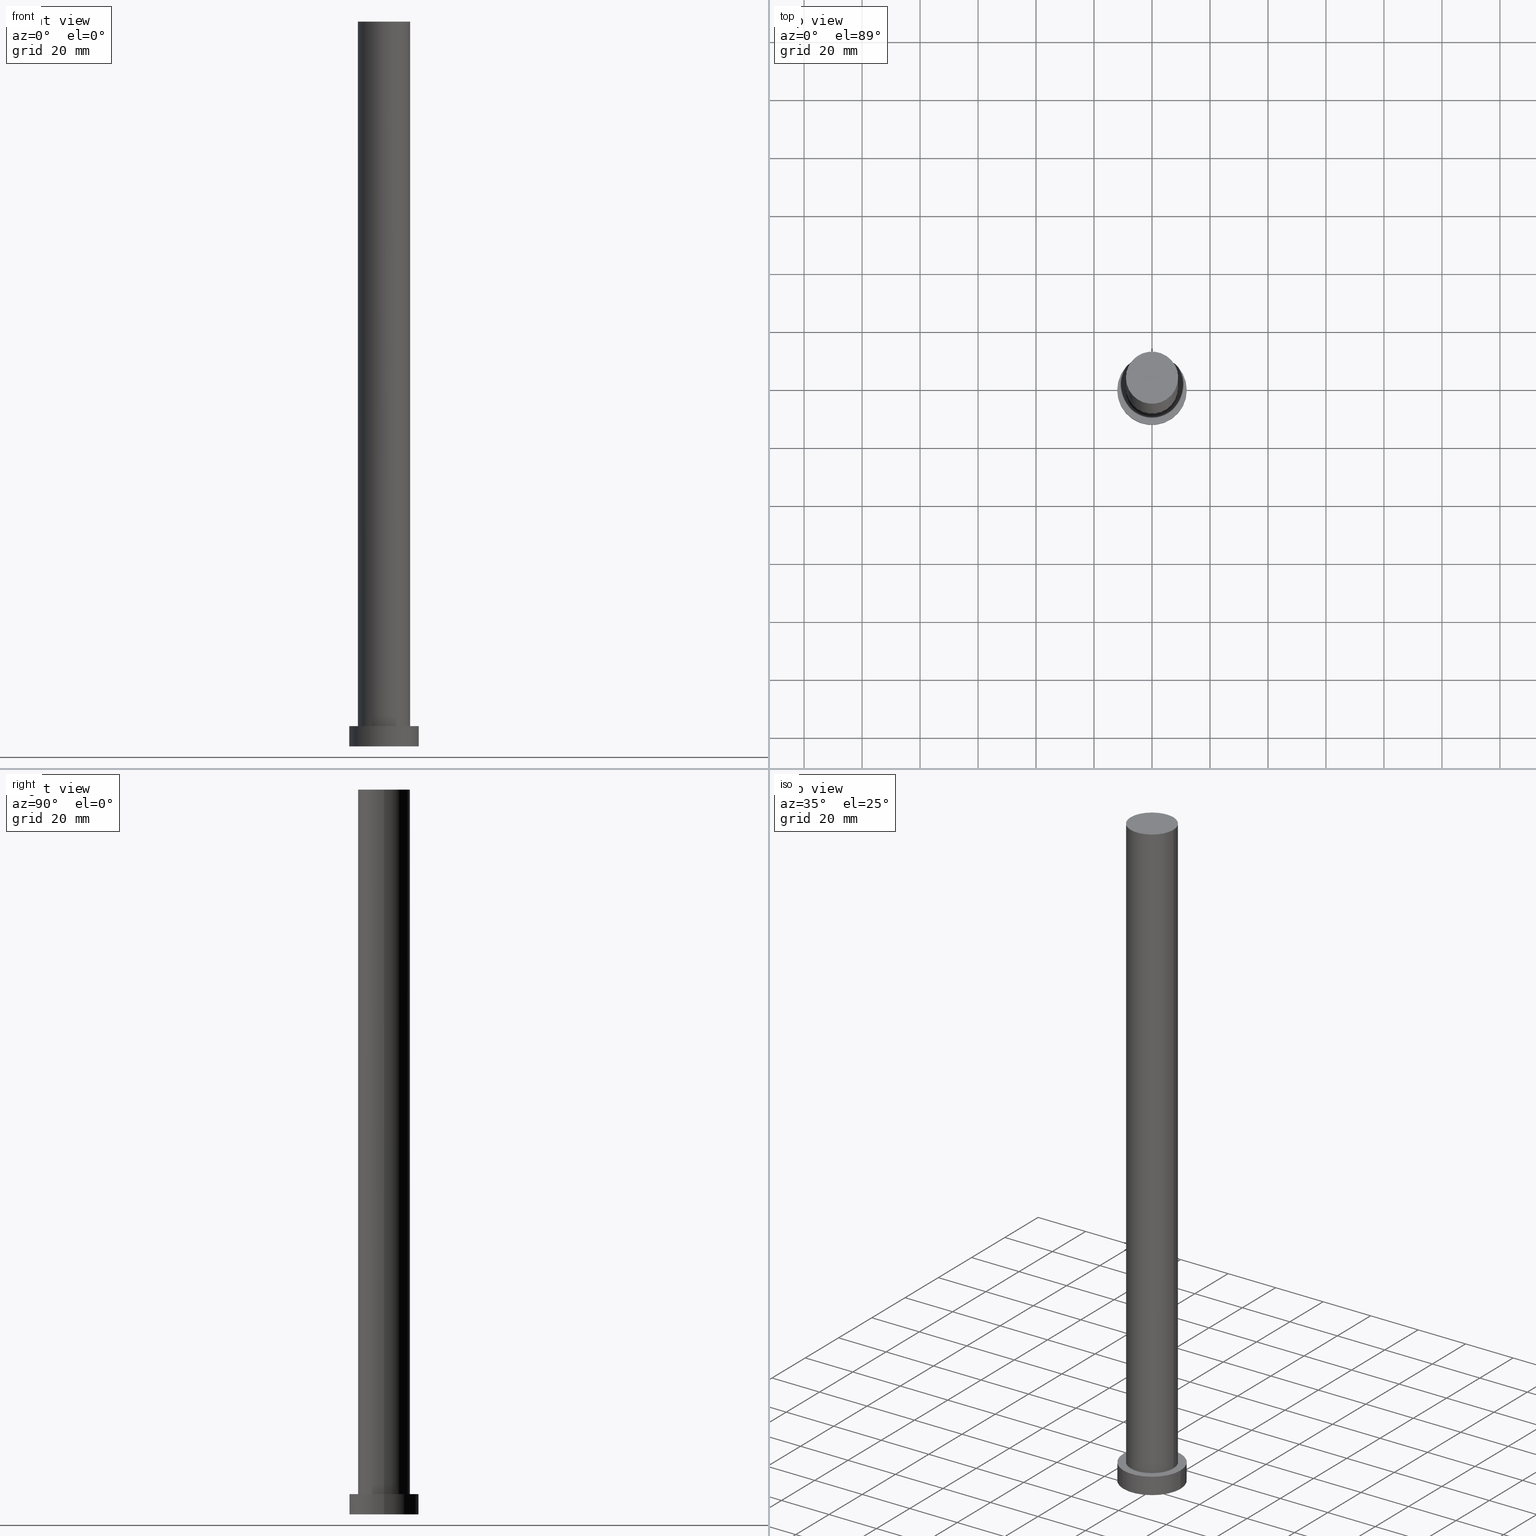
[diagram: canonical four-view strip — front | top / right | iso, engineering-drawing reading convention]
A machine part, canonical four-view strip (front | top / right | iso — engineering-drawing reading convention). The complete STEP part file that produces these views, byte-faithful:
ISO-10303-21;
HEADER;
FILE_DESCRIPTION (( 'STEP AP203' ),
    '1' );
FILE_NAME ('9f86.STEP',
    '2023-02-13T09:18:58',
    ( '' ),
    ( '' ),
    'SwSTEP 2.0',
    'SolidWorks 2019',
    '' );
FILE_SCHEMA (( 'CONFIG_CONTROL_DESIGN' ));
ENDSEC;

DATA;
#1 = DATE_TIME_ROLE ( 'classification_date' ) ;
#2 = CC_DESIGN_PERSON_AND_ORGANIZATION_ASSIGNMENT ( #217, #17, ( #121 ) ) ;
#3 = ORIENTED_EDGE ( 'NONE', *, *, #171, .T. ) ;
#4 = ORIENTED_EDGE ( 'NONE', *, *, #71, .T. ) ;
#5 = DIRECTION ( 'NONE',  ( 0.000000000000000000, 0.000000000000000000, 1.000000000000000000 ) ) ;
#6 = VERTEX_POINT ( 'NONE', #80 ) ;
#7 = CYLINDRICAL_SURFACE ( 'NONE', #140, 9.000000000000000000 ) ;
#8 = DIRECTION ( 'NONE',  ( 0.000000000000000000, 0.000000000000000000, 1.000000000000000000 ) ) ;
#9 = DIRECTION ( 'NONE',  ( -1.000000000000000000, 0.000000000000000000, 0.000000000000000000 ) ) ;
#10 = CARTESIAN_POINT ( 'NONE',  ( 0.000000000000000000, 0.000000000000000000, 250.0000000000000000 ) ) ;
#11 = PRODUCT_RELATED_PRODUCT_CATEGORY ( 'detail', '', ( #75 ) ) ;
#12 = DIRECTION ( 'NONE',  ( 1.000000000000000000, 0.000000000000000000, 0.000000000000000000 ) ) ;
#13 = APPROVAL_DATE_TIME ( #92, #199 ) ;
#14 = PERSON_AND_ORGANIZATION ( #195, #54 ) ;
#15 = ADVANCED_FACE ( 'NONE', ( #186 ), #79, .F. ) ;
#16 = APPROVAL_ROLE ( '' ) ;
#17 = PERSON_AND_ORGANIZATION_ROLE ( 'creator' ) ;
#18 = VERTEX_POINT ( 'NONE', #203 ) ;
#19 = EDGE_CURVE ( 'NONE', #191, #167, #163, .T. ) ;
#20 = ORIENTED_EDGE ( 'NONE', *, *, #134, .F. ) ;
#21 = ORIENTED_EDGE ( 'NONE', *, *, #117, .F. ) ;
#22 = FACE_OUTER_BOUND ( 'NONE', #123, .T. ) ;
#23 = DIRECTION ( 'NONE',  ( 0.000000000000000000, 0.000000000000000000, 1.000000000000000000 ) ) ;
#24 = CC_DESIGN_PERSON_AND_ORGANIZATION_ASSIGNMENT ( #137, #252, ( #193 ) ) ;
#25 = DIRECTION ( 'NONE',  ( -0.000000000000000000, -0.000000000000000000, -1.000000000000000000 ) ) ;
#26 = LINE ( 'NONE', #66, #239 ) ;
#27 = CARTESIAN_POINT ( 'NONE',  ( 0.000000000000000000, 0.000000000000000000, 250.0000000000000000 ) ) ;
#28 = CIRCLE ( 'NONE', #91, 12.00000000000000178 ) ;
#29 = DIRECTION ( 'NONE',  ( -0.000000000000000000, -0.000000000000000000, -1.000000000000000000 ) ) ;
#30 = AXIS2_PLACEMENT_3D ( 'NONE', #58, #23, #122 ) ;
#31 = CARTESIAN_POINT ( 'NONE',  ( 0.000000000000000000, 0.000000000000000000, 7.000000000000000000 ) ) ;
#32 = AXIS2_PLACEMENT_3D ( 'NONE', #197, #226, #212 ) ;
#33 = CALENDAR_DATE ( 2023, 13, 2 ) ;
#34 = COORDINATED_UNIVERSAL_TIME_OFFSET ( 1, 0, .AHEAD. ) ;
#35 = DIRECTION ( 'NONE',  ( 1.000000000000000000, 0.000000000000000000, 0.000000000000000000 ) ) ;
#36 = AXIS2_PLACEMENT_3D ( 'NONE', #50, #25, #207 ) ;
#37 = APPROVAL_PERSON_ORGANIZATION ( #165, #199, #111 ) ;
#38 = APPROVAL_STATUS ( 'not_yet_approved' ) ;
#39 = CARTESIAN_POINT ( 'NONE',  ( 0.000000000000000000, 0.000000000000000000, 7.000000000000000000 ) ) ;
#40 = EDGE_LOOP ( 'NONE', ( #146, #220 ) ) ;
#41 = ORIENTED_EDGE ( 'NONE', *, *, #225, .T. ) ;
#42 = CARTESIAN_POINT ( 'NONE',  ( 0.000000000000000000, 0.000000000000000000, 7.000000000000000000 ) ) ;
#43 = EDGE_CURVE ( 'NONE', #59, #18, #149, .T. ) ;
#44 = DIRECTION ( 'NONE',  ( 0.000000000000000000, 0.000000000000000000, 1.000000000000000000 ) ) ;
#45 = FACE_OUTER_BOUND ( 'NONE', #82, .T. ) ;
#46 = AXIS2_PLACEMENT_3D ( 'NONE', #246, #47, #126 ) ;
#47 = DIRECTION ( 'NONE',  ( 0.000000000000000000, 0.000000000000000000, 1.000000000000000000 ) ) ;
#48 = CC_DESIGN_DATE_AND_TIME_ASSIGNMENT ( #69, #158, ( #193 ) ) ;
#49 = CYLINDRICAL_SURFACE ( 'NONE', #36, 12.00000000000000178 ) ;
#50 = CARTESIAN_POINT ( 'NONE',  ( 0.000000000000000000, 0.000000000000000000, 7.000000000000000000 ) ) ;
#51 = MECHANICAL_CONTEXT ( 'NONE', #67, 'mechanical' ) ;
#52 = AXIS2_PLACEMENT_3D ( 'NONE', #39, #104, #89 ) ;
#53 = DATE_AND_TIME ( #213, #157 ) ;
#54 = ORGANIZATION ( 'NEUR�EN�', 'NEUR�EN�', '' ) ;
#55 = VERTEX_POINT ( 'NONE', #204 ) ;
#56 = DESIGN_CONTEXT ( 'detailed design', #243, 'design' ) ;
#57 = ORIENTED_EDGE ( 'NONE', *, *, #160, .T. ) ;
#58 = CARTESIAN_POINT ( 'NONE',  ( 0.000000000000000000, 0.000000000000000000, 250.0000000000000000 ) ) ;
#59 = VERTEX_POINT ( 'NONE', #219 ) ;
#60 = LOCAL_TIME ( 10, 18, 58.00000000000000000, #159 ) ;
#61 = AXIS2_PLACEMENT_3D ( 'NONE', #42, #5, #187 ) ;
#62 = ORIENTED_EDGE ( 'NONE', *, *, #43, .F. ) ;
#63 =( NAMED_UNIT ( * ) PLANE_ANGLE_UNIT ( ) SI_UNIT ( $, .RADIAN. ) );
#64 = DIRECTION ( 'NONE',  ( 1.000000000000000000, 0.000000000000000000, 0.000000000000000000 ) ) ;
#65 = CARTESIAN_POINT ( 'NONE',  ( -12.00000000000000178, 0.000000000000000000, 0.000000000000000000 ) ) ;
#66 = CARTESIAN_POINT ( 'NONE',  ( 12.00000000000000178, 1.469576158976824144E-15, 7.000000000000000000 ) ) ;
#67 = APPLICATION_CONTEXT ( 'configuration controlled 3d designs of mechanical parts and assemblies' ) ;
#68 = CC_DESIGN_APPROVAL ( #182, ( #183 ) ) ;
#69 = DATE_AND_TIME ( #33, #141 ) ;
#70 = PERSON_AND_ORGANIZATION ( #195, #54 ) ;
#71 = EDGE_CURVE ( 'NONE', #55, #233, #185, .T. ) ;
#72 = PERSON_AND_ORGANIZATION_ROLE ( 'design_owner' ) ;
#73 = AXIS2_PLACEMENT_3D ( 'NONE', #102, #44, #206 ) ;
#74 = DATE_AND_TIME ( #216, #60 ) ;
#75 = PRODUCT ( '9f86', '9f86', '', ( #51 ) ) ;
#76 = CIRCLE ( 'NONE', #138, 9.000000000000000000 ) ;
#77 = EDGE_LOOP ( 'NONE', ( #168, #99, #118, #4 ) ) ;
#78 = VERTEX_POINT ( 'NONE', #205 ) ;
#79 = PLANE ( 'NONE',  #136 ) ;
#80 = CARTESIAN_POINT ( 'NONE',  ( -12.00000000000000178, 0.000000000000000000, 7.000000000000000000 ) ) ;
#81 = CC_DESIGN_SECURITY_CLASSIFICATION ( #183, ( #121 ) ) ;
#82 = EDGE_LOOP ( 'NONE', ( #62, #57, #241, #21 ) ) ;
#83 = DIRECTION ( 'NONE',  ( -0.000000000000000000, -0.000000000000000000, -1.000000000000000000 ) ) ;
#84 = DIRECTION ( 'NONE',  ( -0.000000000000000000, -0.000000000000000000, -1.000000000000000000 ) ) ;
#85 = VECTOR ( 'NONE', #84, 1000.000000000000000 ) ;
#86 = ADVANCED_FACE ( 'NONE', ( #22 ), #188, .T. ) ;
#87 = DIRECTION ( 'NONE',  ( 1.000000000000000000, 0.000000000000000000, 0.000000000000000000 ) ) ;
#88 = DIRECTION ( 'NONE',  ( 1.000000000000000000, 0.000000000000000000, -0.000000000000000000 ) ) ;
#89 = DIRECTION ( 'NONE',  ( -1.000000000000000000, 0.000000000000000000, 0.000000000000000000 ) ) ;
#90 = PERSON_AND_ORGANIZATION_ROLE ( 'design_supplier' ) ;
#91 = AXIS2_PLACEMENT_3D ( 'NONE', #155, #176, #87 ) ;
#92 = DATE_AND_TIME ( #201, #147 ) ;
#93 = ADVANCED_BREP_SHAPE_REPRESENTATION ( '9f86', ( #245, #116 ), #97 ) ;
#94 = ADVANCED_FACE ( 'NONE', ( #109, #132 ), #174, .T. ) ;
#95 = APPLICATION_PROTOCOL_DEFINITION ( 'international standard', 'config_control_design', 1994, #243 ) ;
#96 = PERSON_AND_ORGANIZATION ( #195, #54 ) ;
#97 =( GEOMETRIC_REPRESENTATION_CONTEXT ( 3 ) GLOBAL_UNCERTAINTY_ASSIGNED_CONTEXT ( ( #232 ) ) GLOBAL_UNIT_ASSIGNED_CONTEXT ( ( #156, #63, #218 ) ) REPRESENTATION_CONTEXT ( 'NONE', 'WORKASPACE' ) );
#98 = PERSON_AND_ORGANIZATION_ROLE ( 'classification_officer' ) ;
#99 = ORIENTED_EDGE ( 'NONE', *, *, #120, .F. ) ;
#100 = ORIENTED_EDGE ( 'NONE', *, *, #171, .F. ) ;
#101 = DIRECTION ( 'NONE',  ( 0.000000000000000000, 0.000000000000000000, 1.000000000000000000 ) ) ;
#102 = CARTESIAN_POINT ( 'NONE',  ( 0.000000000000000000, 0.000000000000000000, 0.000000000000000000 ) ) ;
#103 = CIRCLE ( 'NONE', #46, 12.00000000000000178 ) ;
#104 = DIRECTION ( 'NONE',  ( -0.000000000000000000, -0.000000000000000000, -1.000000000000000000 ) ) ;
#105 = LINE ( 'NONE', #128, #85 ) ;
#106 = CC_DESIGN_PERSON_AND_ORGANIZATION_ASSIGNMENT ( #70, #98, ( #183 ) ) ;
#107 = DIRECTION ( 'NONE',  ( -0.000000000000000000, -0.000000000000000000, -1.000000000000000000 ) ) ;
#108 = DIRECTION ( 'NONE',  ( 0.000000000000000000, 0.000000000000000000, 1.000000000000000000 ) ) ;
#109 = FACE_BOUND ( 'NONE', #148, .T. ) ;
#110 = PLANE ( 'NONE',  #200 ) ;
#111 = APPROVAL_ROLE ( '' ) ;
#112 = AXIS2_PLACEMENT_3D ( 'NONE', #250, #8, #12 ) ;
#113 = SECURITY_CLASSIFICATION_LEVEL ( 'unclassified' ) ;
#114 = COORDINATED_UNIVERSAL_TIME_OFFSET ( 1, 0, .AHEAD. ) ;
#115 = DIRECTION ( 'NONE',  ( 0.000000000000000000, 0.000000000000000000, 1.000000000000000000 ) ) ;
#116 = AXIS2_PLACEMENT_3D ( 'NONE', #139, #115, #35 ) ;
#117 = EDGE_CURVE ( 'NONE', #18, #55, #105, .T. ) ;
#118 = ORIENTED_EDGE ( 'NONE', *, *, #117, .T. ) ;
#119 = EDGE_LOOP ( 'NONE', ( #202, #41, #238, #20 ) ) ;
#120 = EDGE_CURVE ( 'NONE', #18, #59, #76, .T. ) ;
#121 = PRODUCT_DEFINITION_FORMATION_WITH_SPECIFIED_SOURCE ( 'LIBOVOLN�', '', #75, .NOT_KNOWN. ) ;
#122 = DIRECTION ( 'NONE',  ( 1.000000000000000000, 0.000000000000000000, 0.000000000000000000 ) ) ;
#123 = EDGE_LOOP ( 'NONE', ( #166, #100, #222, #235 ) ) ;
#124 = PRODUCT_DEFINITION_SHAPE ( 'NONE', 'NONE',  #193 ) ;
#125 = ORIENTED_EDGE ( 'NONE', *, *, #43, .T. ) ;
#126 = DIRECTION ( 'NONE',  ( 1.000000000000000000, 0.000000000000000000, 0.000000000000000000 ) ) ;
#127 = CLOSED_SHELL ( 'NONE', ( #236, #180, #86, #94, #15, #189, #175 ) ) ;
#128 = CARTESIAN_POINT ( 'NONE',  ( -9.000000000000000000, 0.000000000000000000, 250.0000000000000000 ) ) ;
#129 = LINE ( 'NONE', #247, #145 ) ;
#130 = DIRECTION ( 'NONE',  ( 1.000000000000000000, 0.000000000000000000, -0.000000000000000000 ) ) ;
#131 = CC_DESIGN_APPROVAL ( #199, ( #121 ) ) ;
#132 = FACE_OUTER_BOUND ( 'NONE', #221, .T. ) ;
#133 = APPROVAL_DATE_TIME ( #53, #144 ) ;
#134 = EDGE_CURVE ( 'NONE', #6, #167, #153, .T. ) ;
#135 = COORDINATED_UNIVERSAL_TIME_OFFSET ( 1, 0, .AHEAD. ) ;
#136 = AXIS2_PLACEMENT_3D ( 'NONE', #143, #101, #142 ) ;
#137 = PERSON_AND_ORGANIZATION ( #195, #54 ) ;
#138 = AXIS2_PLACEMENT_3D ( 'NONE', #173, #211, #64 ) ;
#139 = CARTESIAN_POINT ( 'NONE',  ( 0.000000000000000000, 0.000000000000000000, 0.000000000000000000 ) ) ;
#140 = AXIS2_PLACEMENT_3D ( 'NONE', #27, #83, #194 ) ;
#141 = LOCAL_TIME ( 10, 18, 58.00000000000000000, #34 ) ;
#142 = DIRECTION ( 'NONE',  ( 1.000000000000000000, 0.000000000000000000, -0.000000000000000000 ) ) ;
#143 = CARTESIAN_POINT ( 'NONE',  ( 0.000000000000000000, 0.000000000000000000, 0.000000000000000000 ) ) ;
#144 = APPROVAL ( #230, 'NEUR�EN�' ) ;
#145 = VECTOR ( 'NONE', #196, 1000.000000000000000 ) ;
#146 = ORIENTED_EDGE ( 'NONE', *, *, #215, .F. ) ;
#147 = LOCAL_TIME ( 10, 18, 58.00000000000000000, #135 ) ;
#148 = EDGE_LOOP ( 'NONE', ( #234, #150 ) ) ;
#149 = CIRCLE ( 'NONE', #30, 9.000000000000000000 ) ;
#150 = ORIENTED_EDGE ( 'NONE', *, *, #253, .F. ) ;
#151 = FACE_OUTER_BOUND ( 'NONE', #223, .T. ) ;
#152 = CARTESIAN_POINT ( 'NONE',  ( -12.00000000000000178, 0.000000000000000000, 7.000000000000000000 ) ) ;
#153 = LINE ( 'NONE', #152, #178 ) ;
#154 = CC_DESIGN_DATE_AND_TIME_ASSIGNMENT ( #184, #1, ( #183 ) ) ;
#155 = CARTESIAN_POINT ( 'NONE',  ( 0.000000000000000000, 0.000000000000000000, 7.000000000000000000 ) ) ;
#156 =( LENGTH_UNIT ( ) NAMED_UNIT ( * ) SI_UNIT ( .MILLI., .METRE. ) );
#157 = LOCAL_TIME ( 10, 18, 58.00000000000000000, #231 ) ;
#158 = DATE_TIME_ROLE ( 'creation_date' ) ;
#159 = COORDINATED_UNIVERSAL_TIME_OFFSET ( 1, 0, .AHEAD. ) ;
#160 = EDGE_CURVE ( 'NONE', #59, #233, #129, .T. ) ;
#161 = APPROVAL_ROLE ( '' ) ;
#162 = PERSON_AND_ORGANIZATION ( #195, #54 ) ;
#163 = CIRCLE ( 'NONE', #73, 12.00000000000000178 ) ;
#164 = CC_DESIGN_PERSON_AND_ORGANIZATION_ASSIGNMENT ( #181, #90, ( #121 ) ) ;
#165 = PERSON_AND_ORGANIZATION ( #195, #54 ) ;
#166 = ORIENTED_EDGE ( 'NONE', *, *, #225, .F. ) ;
#167 = VERTEX_POINT ( 'NONE', #65 ) ;
#168 = ORIENTED_EDGE ( 'NONE', *, *, #160, .F. ) ;
#169 = ORIENTED_EDGE ( 'NONE', *, *, #249, .T. ) ;
#170 = ORIENTED_EDGE ( 'NONE', *, *, #120, .T. ) ;
#171 = EDGE_CURVE ( 'NONE', #6, #78, #237, .T. ) ;
#172 = CARTESIAN_POINT ( 'NONE',  ( 12.00000000000000178, 1.469576158976824144E-15, 0.000000000000000000 ) ) ;
#173 = CARTESIAN_POINT ( 'NONE',  ( 0.000000000000000000, 0.000000000000000000, 250.0000000000000000 ) ) ;
#174 = PLANE ( 'NONE',  #242 ) ;
#175 = ADVANCED_FACE ( 'NONE', ( #151 ), #110, .T. ) ;
#176 = DIRECTION ( 'NONE',  ( 0.000000000000000000, 0.000000000000000000, 1.000000000000000000 ) ) ;
#177 = FACE_OUTER_BOUND ( 'NONE', #119, .T. ) ;
#178 = VECTOR ( 'NONE', #208, 1000.000000000000000 ) ;
#179 = APPROVAL_STATUS ( 'not_yet_approved' ) ;
#180 = ADVANCED_FACE ( 'NONE', ( #177 ), #49, .T. ) ;
#181 = PERSON_AND_ORGANIZATION ( #195, #54 ) ;
#182 = APPROVAL ( #179, 'NEUR�EN�' ) ;
#183 = SECURITY_CLASSIFICATION ( '', '', #113 ) ;
#184 = DATE_AND_TIME ( #198, #214 ) ;
#185 = CIRCLE ( 'NONE', #61, 9.000000000000000000 ) ;
#186 = FACE_OUTER_BOUND ( 'NONE', #40, .T. ) ;
#187 = DIRECTION ( 'NONE',  ( 1.000000000000000000, 0.000000000000000000, 0.000000000000000000 ) ) ;
#188 = CYLINDRICAL_SURFACE ( 'NONE', #52, 12.00000000000000178 ) ;
#189 = ADVANCED_FACE ( 'NONE', ( #192 ), #7, .T. ) ;
#190 = APPROVAL_PERSON_ORGANIZATION ( #96, #182, #16 ) ;
#191 = VERTEX_POINT ( 'NONE', #172 ) ;
#192 = FACE_OUTER_BOUND ( 'NONE', #77, .T. ) ;
#193 = PRODUCT_DEFINITION ( 'NEZN�M�', '', #121, #56 ) ;
#194 = DIRECTION ( 'NONE',  ( -1.000000000000000000, 0.000000000000000000, 0.000000000000000000 ) ) ;
#195 = PERSON ( 'NEUR�EN�', 'NEUR�EN�', 'NEUR�EN�', ('NEUR�EN�'), ('NEUR�EN�'), ('NEUR�EN�') ) ;
#196 = DIRECTION ( 'NONE',  ( -0.000000000000000000, -0.000000000000000000, -1.000000000000000000 ) ) ;
#197 = CARTESIAN_POINT ( 'NONE',  ( 0.000000000000000000, 0.000000000000000000, 7.000000000000000000 ) ) ;
#198 = CALENDAR_DATE ( 2023, 13, 2 ) ;
#199 = APPROVAL ( #38, 'NEUR�EN�' ) ;
#200 = AXIS2_PLACEMENT_3D ( 'NONE', #248, #209, #88 ) ;
#201 = CALENDAR_DATE ( 2023, 13, 2 ) ;
#202 = ORIENTED_EDGE ( 'NONE', *, *, #249, .F. ) ;
#203 = CARTESIAN_POINT ( 'NONE',  ( -9.000000000000000000, 0.000000000000000000, 250.0000000000000000 ) ) ;
#204 = CARTESIAN_POINT ( 'NONE',  ( -9.000000000000000000, 0.000000000000000000, 7.000000000000000000 ) ) ;
#205 = CARTESIAN_POINT ( 'NONE',  ( 12.00000000000000178, 1.469576158976824144E-15, 7.000000000000000000 ) ) ;
#206 = DIRECTION ( 'NONE',  ( 1.000000000000000000, 0.000000000000000000, 0.000000000000000000 ) ) ;
#207 = DIRECTION ( 'NONE',  ( -1.000000000000000000, 0.000000000000000000, 0.000000000000000000 ) ) ;
#208 = DIRECTION ( 'NONE',  ( -0.000000000000000000, -0.000000000000000000, -1.000000000000000000 ) ) ;
#209 = DIRECTION ( 'NONE',  ( 0.000000000000000000, 0.000000000000000000, 1.000000000000000000 ) ) ;
#210 = CIRCLE ( 'NONE', #112, 9.000000000000000000 ) ;
#211 = DIRECTION ( 'NONE',  ( 0.000000000000000000, 0.000000000000000000, 1.000000000000000000 ) ) ;
#212 = DIRECTION ( 'NONE',  ( 1.000000000000000000, 0.000000000000000000, 0.000000000000000000 ) ) ;
#213 = CALENDAR_DATE ( 2023, 13, 2 ) ;
#214 = LOCAL_TIME ( 10, 18, 58.00000000000000000, #114 ) ;
#215 = EDGE_CURVE ( 'NONE', #167, #191, #103, .T. ) ;
#216 = CALENDAR_DATE ( 2023, 13, 2 ) ;
#217 = PERSON_AND_ORGANIZATION ( #195, #54 ) ;
#218 =( NAMED_UNIT ( * ) SI_UNIT ( $, .STERADIAN. ) SOLID_ANGLE_UNIT ( ) );
#219 = CARTESIAN_POINT ( 'NONE',  ( 9.000000000000000000, 1.102182119232617714E-15, 250.0000000000000000 ) ) ;
#220 = ORIENTED_EDGE ( 'NONE', *, *, #19, .F. ) ;
#221 = EDGE_LOOP ( 'NONE', ( #3, #169 ) ) ;
#222 = ORIENTED_EDGE ( 'NONE', *, *, #134, .T. ) ;
#223 = EDGE_LOOP ( 'NONE', ( #170, #125 ) ) ;
#224 = CARTESIAN_POINT ( 'NONE',  ( 9.000000000000000000, 1.102182119232617714E-15, 7.000000000000000000 ) ) ;
#225 = EDGE_CURVE ( 'NONE', #78, #191, #26, .T. ) ;
#226 = DIRECTION ( 'NONE',  ( 0.000000000000000000, 0.000000000000000000, 1.000000000000000000 ) ) ;
#227 = AXIS2_PLACEMENT_3D ( 'NONE', #10, #107, #9 ) ;
#228 = SHAPE_DEFINITION_REPRESENTATION ( #124, #93 ) ;
#229 = CC_DESIGN_PERSON_AND_ORGANIZATION_ASSIGNMENT ( #14, #72, ( #75 ) ) ;
#230 = APPROVAL_STATUS ( 'not_yet_approved' ) ;
#231 = COORDINATED_UNIVERSAL_TIME_OFFSET ( 1, 0, .AHEAD. ) ;
#232 = UNCERTAINTY_MEASURE_WITH_UNIT (LENGTH_MEASURE( 1.000000000000000082E-05 ), #156, 'distance_accuracy_value', 'NONE');
#233 = VERTEX_POINT ( 'NONE', #224 ) ;
#234 = ORIENTED_EDGE ( 'NONE', *, *, #71, .F. ) ;
#235 = ORIENTED_EDGE ( 'NONE', *, *, #215, .T. ) ;
#236 = ADVANCED_FACE ( 'NONE', ( #45 ), #244, .T. ) ;
#237 = CIRCLE ( 'NONE', #32, 12.00000000000000178 ) ;
#238 = ORIENTED_EDGE ( 'NONE', *, *, #19, .T. ) ;
#239 = VECTOR ( 'NONE', #29, 1000.000000000000000 ) ;
#240 = CC_DESIGN_APPROVAL ( #144, ( #193 ) ) ;
#241 = ORIENTED_EDGE ( 'NONE', *, *, #253, .T. ) ;
#242 = AXIS2_PLACEMENT_3D ( 'NONE', #31, #108, #130 ) ;
#243 = APPLICATION_CONTEXT ( 'configuration controlled 3d designs of mechanical parts and assemblies' ) ;
#244 = CYLINDRICAL_SURFACE ( 'NONE', #227, 9.000000000000000000 ) ;
#245 = MANIFOLD_SOLID_BREP ( 'P�idat vysunut�m3', #127 ) ;
#246 = CARTESIAN_POINT ( 'NONE',  ( 0.000000000000000000, 0.000000000000000000, 0.000000000000000000 ) ) ;
#247 = CARTESIAN_POINT ( 'NONE',  ( 9.000000000000000000, 1.102182119232617714E-15, 250.0000000000000000 ) ) ;
#248 = CARTESIAN_POINT ( 'NONE',  ( 0.000000000000000000, 0.000000000000000000, 250.0000000000000000 ) ) ;
#249 = EDGE_CURVE ( 'NONE', #78, #6, #28, .T. ) ;
#250 = CARTESIAN_POINT ( 'NONE',  ( 0.000000000000000000, 0.000000000000000000, 7.000000000000000000 ) ) ;
#251 = APPROVAL_DATE_TIME ( #74, #182 ) ;
#252 = PERSON_AND_ORGANIZATION_ROLE ( 'creator' ) ;
#253 = EDGE_CURVE ( 'NONE', #233, #55, #210, .T. ) ;
#254 = APPLICATION_PROTOCOL_DEFINITION ( 'international standard', 'config_control_design', 1994, #67 ) ;
#255 = APPROVAL_PERSON_ORGANIZATION ( #162, #144, #161 ) ;
ENDSEC;
END-ISO-10303-21;
